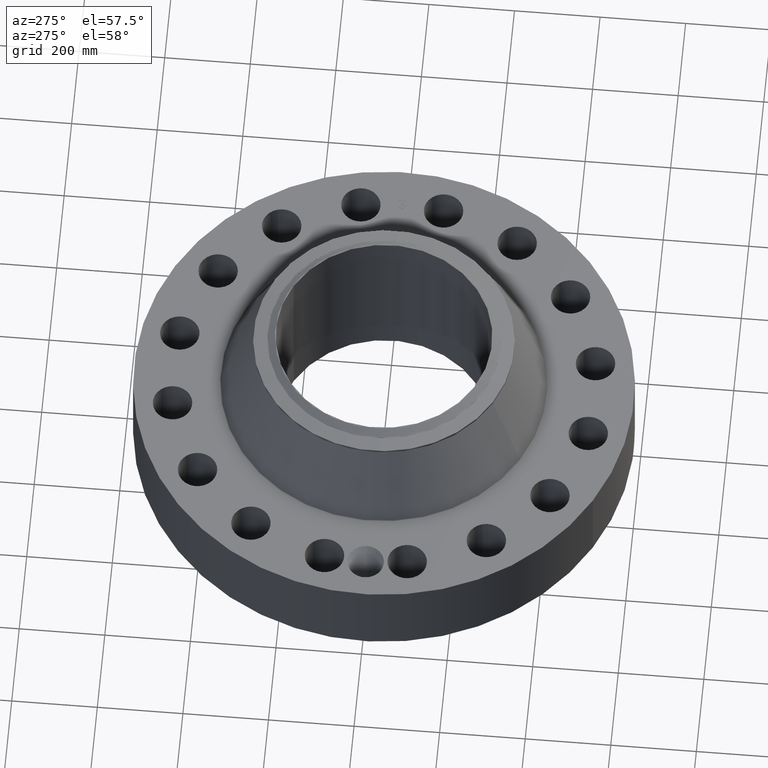
[diagram: clean part render]
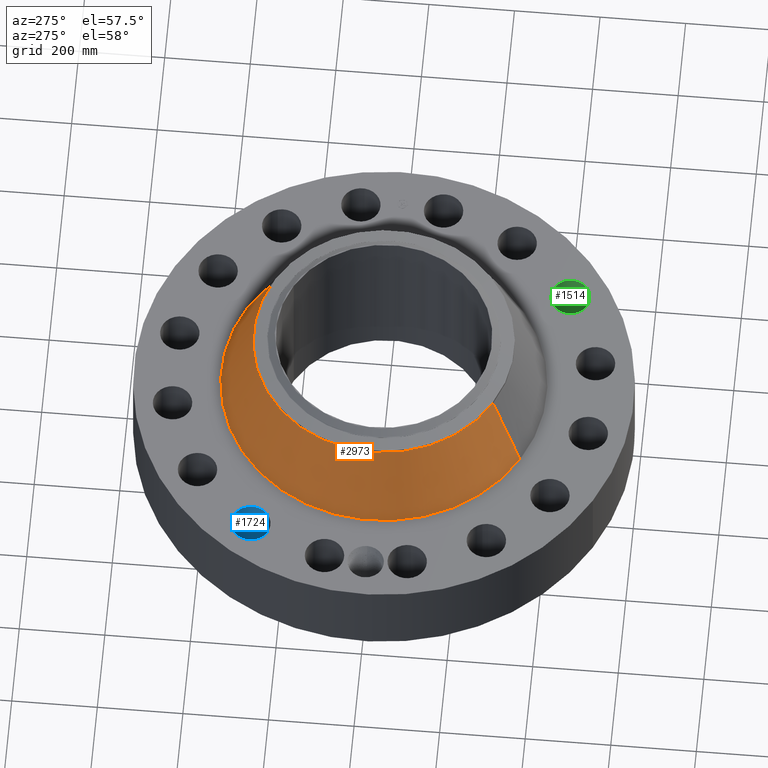
[diagram: same view with three faces highlighted in distinct colors, each labeled with its STEP entity id]
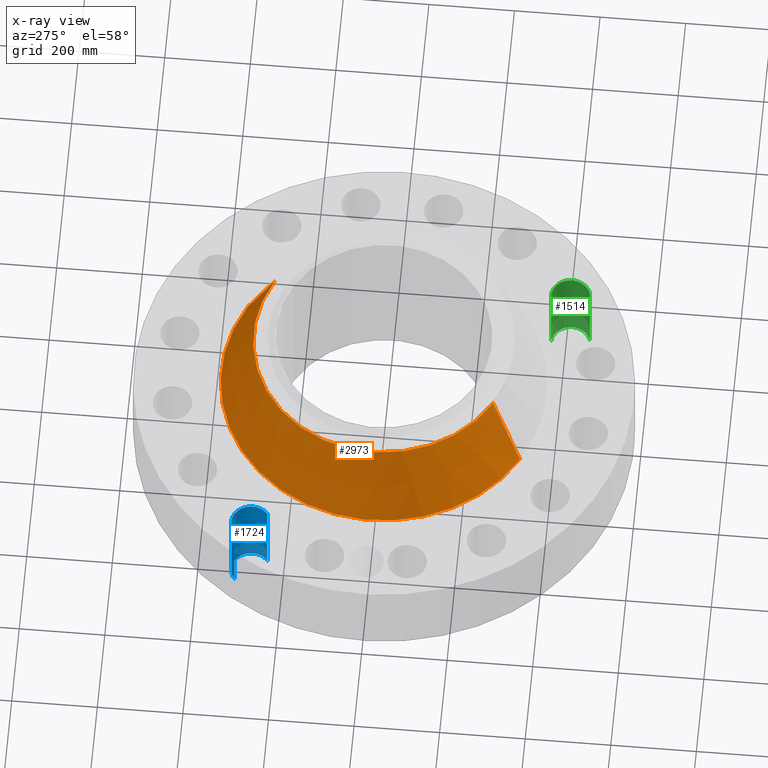
[diagram: x-ray of the same camera — body ghosted, the three highlighted faces saturated]
A machine part, auxiliary view with three faces highlighted in distinct colors.
The next image is the same camera in x-ray (body ghosted, the three faces saturated) — at least one of them is partly hidden behind the body in this view.
Their STEP definitions:

[orange] entity #2973 — the highlighted conical surface has half-angle 23.144 deg.
#2289=AXIS2_PLACEMENT_3D('Circle Axis2P3D',#2287,#2288,$) ;
#2934=AXIS2_PLACEMENT_3D('Cone Axis2P3D',#2931,#2932,#2933) ;
#2964=AXIS2_PLACEMENT_3D('Circle Axis2P3D',#2962,#2963,$) ;
#2265=CARTESIAN_POINT('Vertex',(7.17645728004,13.1364169365,8.3228351622)) ;
#2272=CARTESIAN_POINT('Vertex',(-7.17645728004,-13.1364169365,8.3228351622)) ;
#2287=CARTESIAN_POINT('Axis2P3D Location',(0.,0.,8.3228351622)) ;
#2931=CARTESIAN_POINT('Axis2P3D Location',(0.,0.,15.2685261217)) ;
#2936=CARTESIAN_POINT('Line Origine',(6.46478187166,11.8337038396,11.7956806419)) ;
#2940=CARTESIAN_POINT('Vertex',(5.75310646327,10.5309907427,15.2685261217)) ;
#2947=CARTESIAN_POINT('Vertex',(-5.75310646327,-10.5309907427,15.2685261217)) ;
#2950=CARTESIAN_POINT('Line Origine',(-6.46478187166,-11.8337038396,11.7956806419)) ;
#2962=CARTESIAN_POINT('Axis2P3D Location',(0.,0.,15.2685261217)) ;
#2288=DIRECTION('Axis2P3D Direction',(0.,0.,-0.0393700787402)) ;
#2932=DIRECTION('Axis2P3D Direction',(0.,0.,-0.0393700787402)) ;
#2933=DIRECTION('Axis2P3D XDirection',(-0.0188750212049,-0.0345504945626,0.)) ;
#2937=DIRECTION('Vector Direction',(0.0074186442852,0.0135797372758,-0.0362016236168)) ;
#2951=DIRECTION('Vector Direction',(-0.0074186442852,-0.0135797372758,-0.0362016236168)) ;
#2963=DIRECTION('Axis2P3D Direction',(0.,0.,-0.0393700787402)) ;
#2938=VECTOR('Line Direction',#2937,0.0393700787402) ;
#2952=VECTOR('Line Direction',#2951,0.0393700787402) ;
#2968=ORIENTED_EDGE('',*,*,#2291,.F.) ;
#2969=ORIENTED_EDGE('',*,*,#2954,.T.) ;
#2970=ORIENTED_EDGE('',*,*,#2966,.T.) ;
#2971=ORIENTED_EDGE('',*,*,#2942,.F.) ;
#2973=ADVANCED_FACE('PartBody',(#2972),#2935,.T.) ;
#2290=CIRCLE('generated circle',#2289,14.9688673259) ;
#2965=CIRCLE('generated circle',#2964,12.) ;
#2935=CONICAL_SURFACE('Cone',#2934,12.,0.403935676684) ;
#2291=EDGE_CURVE('',#2273,#2266,#2290,.T.) ;
#2942=EDGE_CURVE('',#2266,#2941,#2939,.F.) ;
#2954=EDGE_CURVE('',#2273,#2948,#2953,.F.) ;
#2966=EDGE_CURVE('',#2948,#2941,#2965,.T.) ;
#2967=EDGE_LOOP('',(#2968,#2969,#2970,#2971)) ;
#2972=FACE_OUTER_BOUND('',#2967,.T.) ;
#2939=LINE('Line',#2936,#2938) ;
#2953=LINE('Line',#2950,#2952) ;
#2266=VERTEX_POINT('',#2265) ;
#2273=VERTEX_POINT('',#2272) ;
#2941=VERTEX_POINT('',#2940) ;
#2948=VERTEX_POINT('',#2947) ;

[blue] entity #1724 — the highlighted cylindrical surface (edge-blend (fillet) strip) has radius 45.974 mm, axis along (0, 0, -1).
#431=AXIS2_PLACEMENT_3D('Circle Axis2P3D',#429,#430,$) ;
#901=AXIS2_PLACEMENT_3D('Circle Axis2P3D',#899,#900,$) ;
#1699=AXIS2_PLACEMENT_3D('Cylinder Axis2P3D',#1696,#1697,#1698) ;
#424=CARTESIAN_POINT('Vertex',(-15.078222075,9.42404991742,0.250000000001)) ;
#426=CARTESIAN_POINT('Vertex',(-17.3490928049,12.2431891704,0.250000000001)) ;
#429=CARTESIAN_POINT('Axis2P3D Location',(-16.21365744,10.8336195439,0.250000000001)) ;
#899=CARTESIAN_POINT('Axis2P3D Location',(-16.21365744,10.8336195439,8.25000000003)) ;
#903=CARTESIAN_POINT('Vertex',(-17.3490928049,12.2431891704,8.25000000003)) ;
#905=CARTESIAN_POINT('Vertex',(-15.078222075,9.42404991742,8.25000000003)) ;
#1696=CARTESIAN_POINT('Axis2P3D Location',(-16.21365744,10.8336195439,8.24606299216)) ;
#1701=CARTESIAN_POINT('Line Origine',(-15.078222075,9.42404991742,4.25000000002)) ;
#1706=CARTESIAN_POINT('Line Origine',(-17.3490928049,12.2431891704,4.25000000002)) ;
#430=DIRECTION('Axis2P3D Direction',(0.,0.,-0.0393700787402)) ;
#900=DIRECTION('Axis2P3D Direction',(0.,0.,-0.0393700787402)) ;
#1697=DIRECTION('Axis2P3D Direction',(0.,0.,-0.0393700787402)) ;
#1698=DIRECTION('Axis2P3D XDirection',(-0.0246973368639,0.030660147616,0.)) ;
#1702=DIRECTION('Vector Direction',(0.,0.,-0.0393700787402)) ;
#1707=DIRECTION('Vector Direction',(0.,0.,-0.0393700787402)) ;
#1703=VECTOR('Line Direction',#1702,0.0393700787402) ;
#1708=VECTOR('Line Direction',#1707,0.0393700787402) ;
#1719=ORIENTED_EDGE('',*,*,#1710,.F.) ;
#1720=ORIENTED_EDGE('',*,*,#433,.T.) ;
#1721=ORIENTED_EDGE('',*,*,#1705,.T.) ;
#1722=ORIENTED_EDGE('',*,*,#907,.F.) ;
#1724=ADVANCED_FACE('PartBody',(#1723),#1700,.F.) ;
#432=CIRCLE('generated circle',#431,1.81000000001) ;
#902=CIRCLE('generated circle',#901,1.81000000001) ;
#1700=CYLINDRICAL_SURFACE('generated cylinder',#1699,1.81000000001) ;
#433=EDGE_CURVE('',#427,#425,#432,.T.) ;
#907=EDGE_CURVE('',#904,#906,#902,.T.) ;
#1705=EDGE_CURVE('',#425,#906,#1704,.F.) ;
#1710=EDGE_CURVE('',#427,#904,#1709,.F.) ;
#1718=EDGE_LOOP('',(#1719,#1720,#1721,#1722)) ;
#1723=FACE_OUTER_BOUND('',#1718,.T.) ;
#1704=LINE('Line',#1701,#1703) ;
#1709=LINE('Line',#1706,#1708) ;
#425=VERTEX_POINT('',#424) ;
#427=VERTEX_POINT('',#426) ;
#904=VERTEX_POINT('',#903) ;
#906=VERTEX_POINT('',#905) ;

[green] entity #1514 — the highlighted cylindrical surface (edge-blend (fillet) strip) has radius 45.974 mm, axis along (0, -0, -1).
#296=AXIS2_PLACEMENT_3D('Circle Axis2P3D',#294,#295,$) ;
#784=AXIS2_PLACEMENT_3D('Circle Axis2P3D',#782,#783,$) ;
#1496=AXIS2_PLACEMENT_3D('Cylinder Axis2P3D',#1493,#1494,#1495) ;
#294=CARTESIAN_POINT('Axis2P3D Location',(10.8336195439,-16.21365744,0.250000000001)) ;
#298=CARTESIAN_POINT('Vertex',(10.3240329926,-14.4768726097,0.250000000001)) ;
#300=CARTESIAN_POINT('Vertex',(11.3432060953,-17.9504422702,0.250000000001)) ;
#777=CARTESIAN_POINT('Vertex',(11.3432060953,-17.9504422702,8.25000000003)) ;
#779=CARTESIAN_POINT('Vertex',(10.3240329926,-14.4768726097,8.25000000003)) ;
#782=CARTESIAN_POINT('Axis2P3D Location',(10.8336195439,-16.21365744,8.25000000003)) ;
#1493=CARTESIAN_POINT('Axis2P3D Location',(10.8336195439,-16.21365744,8.24606299216)) ;
#1498=CARTESIAN_POINT('Line Origine',(10.3240329926,-14.4768726097,4.25000000002)) ;
#1503=CARTESIAN_POINT('Line Origine',(11.3432060953,-17.9504422702,4.25000000002)) ;
#295=DIRECTION('Axis2P3D Direction',(0.,0.,-0.0393700787402)) ;
#783=DIRECTION('Axis2P3D Direction',(0.,0.,-0.0393700787402)) ;
#1494=DIRECTION('Axis2P3D Direction',(0.,-0.,-0.0393700787402)) ;
#1495=DIRECTION('Axis2P3D XDirection',(0.0110842335096,-0.0377775444876,0.)) ;
#1499=DIRECTION('Vector Direction',(0.,0.,-0.0393700787402)) ;
#1504=DIRECTION('Vector Direction',(0.,0.,-0.0393700787402)) ;
#1500=VECTOR('Line Direction',#1499,0.0393700787402) ;
#1505=VECTOR('Line Direction',#1504,0.0393700787402) ;
#1509=ORIENTED_EDGE('',*,*,#1502,.F.) ;
#1510=ORIENTED_EDGE('',*,*,#302,.T.) ;
#1511=ORIENTED_EDGE('',*,*,#1507,.T.) ;
#1512=ORIENTED_EDGE('',*,*,#786,.F.) ;
#1514=ADVANCED_FACE('PartBody',(#1513),#1497,.F.) ;
#297=CIRCLE('generated circle',#296,1.81000000001) ;
#785=CIRCLE('generated circle',#784,1.81000000001) ;
#1497=CYLINDRICAL_SURFACE('generated cylinder',#1496,1.81000000001) ;
#302=EDGE_CURVE('',#299,#301,#297,.T.) ;
#786=EDGE_CURVE('',#780,#778,#785,.T.) ;
#1502=EDGE_CURVE('',#299,#780,#1501,.F.) ;
#1507=EDGE_CURVE('',#301,#778,#1506,.F.) ;
#1508=EDGE_LOOP('',(#1509,#1510,#1511,#1512)) ;
#1513=FACE_OUTER_BOUND('',#1508,.T.) ;
#1501=LINE('Line',#1498,#1500) ;
#1506=LINE('Line',#1503,#1505) ;
#299=VERTEX_POINT('',#298) ;
#301=VERTEX_POINT('',#300) ;
#778=VERTEX_POINT('',#777) ;
#780=VERTEX_POINT('',#779) ;